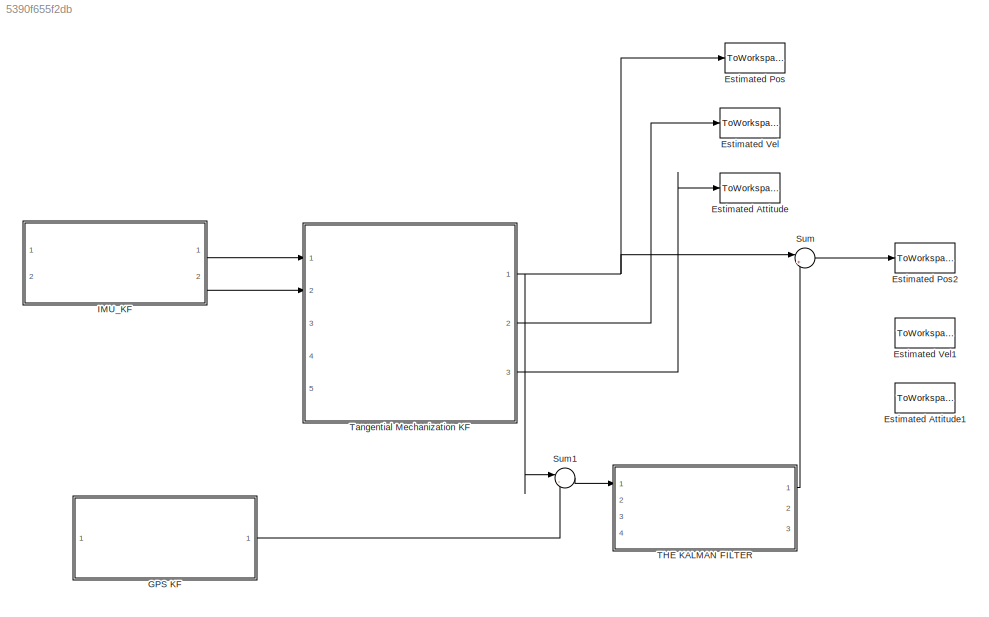
MODEL slx_5390f655f2db
KIND model
CONFIG AbsTol = auto
CONFIG EnableMultiTasking = off
CONFIG FixedStep = auto
CONFIG MaxStep = auto
CONFIG MinStep = auto
CONFIG RelTol = 1e-3
CONFIG SampleTimeConstraint = Unconstrained
CONFIG Solver = VariableStepAuto
CONFIG SolverName = VariableStepAuto
CONFIG StartTime = 0.0
CONFIG StopTime = 10.0
BLOCK [ToWorkspace] Estimated Attitude
  FixptAsFi = on
  MaxDataPoints = inf
  Ports = [1]
  SampleTime = -1
  Save2DSignal = 3-D array (concatenate along third dimension)
  VariableName = A_imu
BLOCK [ToWorkspace] Estimated Attitude1
  FixptAsFi = on
  MaxDataPoints = inf
  Ports = [1]
  SampleTime = -1
  Save2DSignal = 3-D array (concatenate along third dimension)
  VariableName = A_KF
BLOCK [ToWorkspace] Estimated Pos
  FixptAsFi = on
  MaxDataPoints = inf
  Ports = [1]
  SampleTime = -1
  Save2DSignal = 3-D array (concatenate along third dimension)
  VariableName = P_imu
BLOCK [ToWorkspace] Estimated Pos2
  FixptAsFi = on
  MaxDataPoints = inf
  Ports = [1]
  SampleTime = -1
  Save2DSignal = 3-D array (concatenate along third dimension)
  VariableName = P_KF
BLOCK [ToWorkspace] Estimated Vel
  FixptAsFi = on
  MaxDataPoints = inf
  Ports = [1]
  SampleTime = -1
  Save2DSignal = 3-D array (concatenate along third dimension)
  VariableName = V_imu
BLOCK [ToWorkspace] Estimated Vel1
  FixptAsFi = on
  MaxDataPoints = inf
  Ports = [1]
  SampleTime = -1
  Save2DSignal = 3-D array (concatenate along third dimension)
  VariableName = V_KF
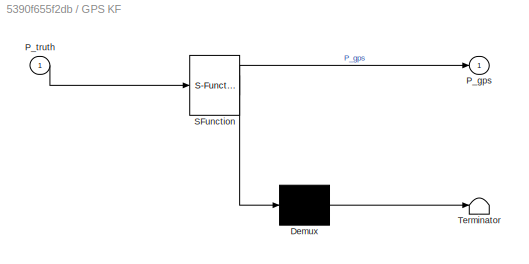
BLOCK [SubSystem] GPS KF
  ErrorFcn = Stateflow.Translate.translate
  PermitHierarchicalResolution = ExplicitOnly
  Ports = [1, 1]
  RequestExecContextInheritance = off
  SFBlockType = MATLAB Function
  TreatAsAtomicUnit = on
BLOCK [Demux] GPS KF/ Demux 
  Outputs = 1
  Ports = [1, 1]
BLOCK [S-Function] GPS KF/ SFunction 
  EnableBusSupport = on
  FunctionName = sf_sfun
  Parameters = constants
  PortCounts = [1 2]
  Ports = [1, 2]
  SFcnIsStateOwnerBlock = off
  SFunctionDeploymentMode = off
  Tag = Stateflow S-Function KF_POC_sim 6
BLOCK [Terminator] GPS KF/ Terminator 
BLOCK [Outport] GPS KF/P_gps
  IconDisplay = Port number
BLOCK [Inport] GPS KF/P_truth
  IconDisplay = Port number
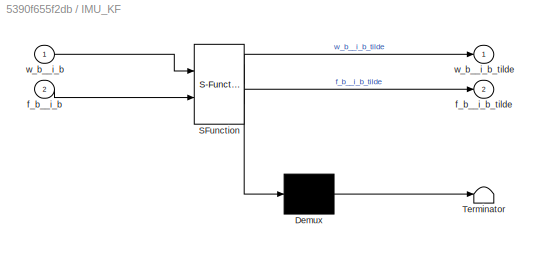
BLOCK [SubSystem] IMU_KF
  ErrorFcn = Stateflow.Translate.translate
  PermitHierarchicalResolution = ExplicitOnly
  Ports = [2, 2]
  RequestExecContextInheritance = off
  SFBlockType = MATLAB Function
  TreatAsAtomicUnit = on
BLOCK [Demux] IMU_KF/ Demux 
  Outputs = 1
  Ports = [1, 1]
BLOCK [S-Function] IMU_KF/ SFunction 
  EnableBusSupport = on
  FunctionName = sf_sfun
  Parameters = constants
  PortCounts = [2 3]
  Ports = [2, 3]
  SFcnIsStateOwnerBlock = off
  SFunctionDeploymentMode = off
  Tag = Stateflow S-Function KF_POC_sim 4
BLOCK [Terminator] IMU_KF/ Terminator 
BLOCK [Inport] IMU_KF/f_b__i_b
  IconDisplay = Port number
  Port = 2
BLOCK [Outport] IMU_KF/f_b__i_b_tilde
  IconDisplay = Port number
  Port = 2
BLOCK [Inport] IMU_KF/w_b__i_b
  IconDisplay = Port number
BLOCK [Outport] IMU_KF/w_b__i_b_tilde
  IconDisplay = Port number
BLOCK [Sum] Sum
  IconShape = round
  InputSameDT = off
  Inputs = |++
  OutDataTypeStr = Inherit: Inherit via internal rule
  Ports = [2, 1]
  SaturateOnIntegerOverflow = off
BLOCK [Sum] Sum1
  IconShape = round
  InputSameDT = off
  Inputs = |-+
  OutDataTypeStr = Inherit: Inherit via internal rule
  Ports = [2, 1]
  SaturateOnIntegerOverflow = off
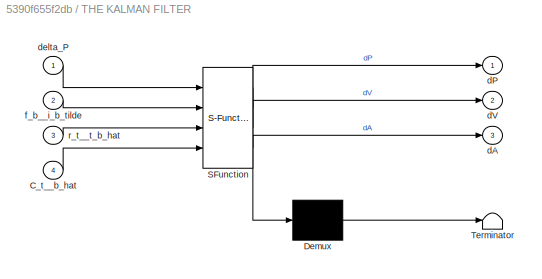
BLOCK [SubSystem] THE KALMAN FILTER
  ErrorFcn = Stateflow.Translate.translate
  PermitHierarchicalResolution = ExplicitOnly
  Ports = [4, 3]
  RequestExecContextInheritance = off
  SFBlockType = MATLAB Function
  TreatAsAtomicUnit = on
BLOCK [Demux] THE KALMAN FILTER/ Demux 
  Outputs = 1
  Ports = [1, 1]
BLOCK [S-Function] THE KALMAN FILTER/ SFunction 
  EnableBusSupport = on
  FunctionName = sf_sfun
  Parameters = constants
  PortCounts = [4 4]
  Ports = [4, 4]
  SFcnIsStateOwnerBlock = off
  SFunctionDeploymentMode = off
  Tag = Stateflow S-Function KF_POC_sim 8
BLOCK [Terminator] THE KALMAN FILTER/ Terminator 
BLOCK [Inport] THE KALMAN FILTER/C_t__b_hat
  IconDisplay = Port number
  Port = 4
BLOCK [Outport] THE KALMAN FILTER/dA
  IconDisplay = Port number
  Port = 3
  VectorParamsAs1DForOutWhenUnconnected = on
BLOCK [Outport] THE KALMAN FILTER/dP
  IconDisplay = Port number
BLOCK [Outport] THE KALMAN FILTER/dV
  IconDisplay = Port number
  Port = 2
  VectorParamsAs1DForOutWhenUnconnected = on
BLOCK [Inport] THE KALMAN FILTER/delta_P
  IconDisplay = Port number
BLOCK [Inport] THE KALMAN FILTER/f_b__i_b_tilde
  IconDisplay = Port number
  Port = 2
BLOCK [Inport] THE KALMAN FILTER/r_t__t_b_hat
  IconDisplay = Port number
  Port = 3
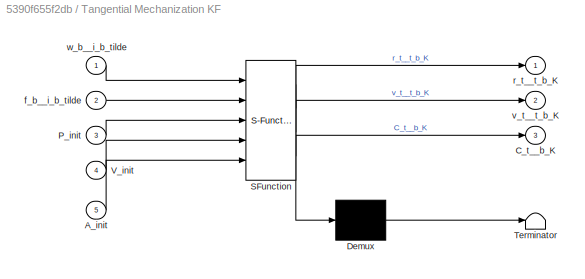
BLOCK [SubSystem] Tangential Mechanization KF
  ErrorFcn = Stateflow.Translate.translate
  PermitHierarchicalResolution = ExplicitOnly
  Ports = [5, 3]
  RequestExecContextInheritance = off
  SFBlockType = MATLAB Function
  TreatAsAtomicUnit = on
BLOCK [Demux] Tangential Mechanization KF/ Demux 
  Outputs = 1
  Ports = [1, 1]
BLOCK [S-Function] Tangential Mechanization KF/ SFunction 
  EnableBusSupport = on
  FunctionName = sf_sfun
  Parameters = constants
  PortCounts = [5 4]
  Ports = [5, 4]
  SFcnIsStateOwnerBlock = off
  SFunctionDeploymentMode = off
  Tag = Stateflow S-Function KF_POC_sim 5
BLOCK [Terminator] Tangential Mechanization KF/ Terminator 
BLOCK [Inport] Tangential Mechanization KF/A_init
  IconDisplay = Port number
  Port = 5
BLOCK [Outport] Tangential Mechanization KF/C_t__b_K
  IconDisplay = Port number
  Port = 3
BLOCK [Inport] Tangential Mechanization KF/P_init
  IconDisplay = Port number
  Port = 3
BLOCK [Inport] Tangential Mechanization KF/V_init
  IconDisplay = Port number
  Port = 4
BLOCK [Inport] Tangential Mechanization KF/f_b__i_b_tilde
  IconDisplay = Port number
  Port = 2
BLOCK [Outport] Tangential Mechanization KF/r_t__t_b_K
  IconDisplay = Port number
BLOCK [Outport] Tangential Mechanization KF/v_t__t_b_K
  IconDisplay = Port number
  Port = 2
BLOCK [Inport] Tangential Mechanization KF/w_b__i_b_tilde
  IconDisplay = Port number
LINE GPS KF:1 -> Sum1:2
LINE IMU_KF:1 -> Tangential Mechanization KF:1
LINE IMU_KF:2 -> Tangential Mechanization KF:2
LINE Sum1:1 -> THE KALMAN FILTER:1
LINE Sum:1 -> Estimated Pos2:1
LINE THE KALMAN FILTER:1 -> Sum:2
NET Tangential Mechanization KF:1 -> Estimated Pos:1, Sum1:1, Sum:1
LINE Tangential Mechanization KF:2 -> Estimated Vel:1
LINE Tangential Mechanization KF:3 -> Estimated Attitude:1
note: NET lines group one-source signal fan-out (src -> all destinations, sorted); 1:1 wires keep LINE
CHART IMU_KF states=1 transitions=1
  STATE_LABEL 'eML_blk_kernel()'
  STATE_LABEL 'SCRIPT:\nfunction [w_b__i_b_tilde, f_b__i_b_tilde] = IMU_KF(w_b__i_b, f_b__i_b, constants)\n%#codegen\n% FUNCTION DESCRIPTION:\n%   Simulation of an IMU (ideal error-free case)\n%\n% INPUTS:\n%   w_i__i_b = Angular velocity of {b} wrt {i} resolved in {i} (rad/s)\n%   a_i__i_b = Acceleration     of {b} wrt {i} resolved in {i} (m/s^2)\n%   constants= A structure containing many constant parameters\n%\n% OUTPUT...<+3135ch>'
CHART Tangential Mechanization KF states=1 transitions=1
  STATE_LABEL 'eML_blk_kernel()'
  STATE_LABEL 'SCRIPT:\nfunction [r_t__t_b_K, v_t__t_b_K, C_t__b_K] = TAN_mech_KF(w_b__i_b_tilde, f_b__i_b_tilde, P_init, V_init, A_init, constants)\n%#codegen\n% FUNCTION DESCRIPTION:\n%   Implements the low and high-fidelity Tangential Frame Mechanization\n%\n% INPUTS:\n%   w_b__i_b_tilde  = Current Gyro measurements (rad/s)\n%   f_b__i_b_tilde  = Current Accel measurements (m/s^2)\n%   P_init          = True position ...<+3608ch>'
CHART GPS KF states=1 transitions=1
  STATE_LABEL 'eML_blk_kernel()'
  STATE_LABEL 'SCRIPT:\nfunction P_gps  = GPS_KF(P_truth, constants)\n%#codegen\n% FUNCTION DESCRIPTION:\n%   Simulation of an IMU (ideal error-free case)\n%\n% INPUTS:\n%   w_i__i_b = Angular velocity of {b} wrt {i} resolved in {i} (rad/s)\n%   a_i__i_b = Acceleration     of {b} wrt {i} resolved in {i} (m/s^2)\n%   constants= A structure containing many constant parameters\n%\n% OUTPUTS:\n%   w_b__i_b_tilde = Gyro  meas (r...<+445ch>'
CHART THE KALMAN FILTER states=1 transitions=1
  STATE_LABEL 'eML_blk_kernel()'
  STATE_LABEL 'SCRIPT:\nfunction [dP, dV, dA] = The_Kalman(delta_P, f_b__i_b_tilde, r_t__t_b_hat, C_t__b_hat, constants)\nI3 = eye(3);\nO3 = zeros(3);\nsigma_gps = constants.gps.sigma;\ndt         = constants.dt;          % Time step (sec)\nOhm_i__i_e = constants.Ohm_i__i_e;  % Skew symmetric version of w_i__i_e (rad/s)\nC_e__t     = constants.C_e__t;   \t% Attitude of t-frame wrt e-frame (a constant matrix)\nC_t__e     ...<+2110ch>'
